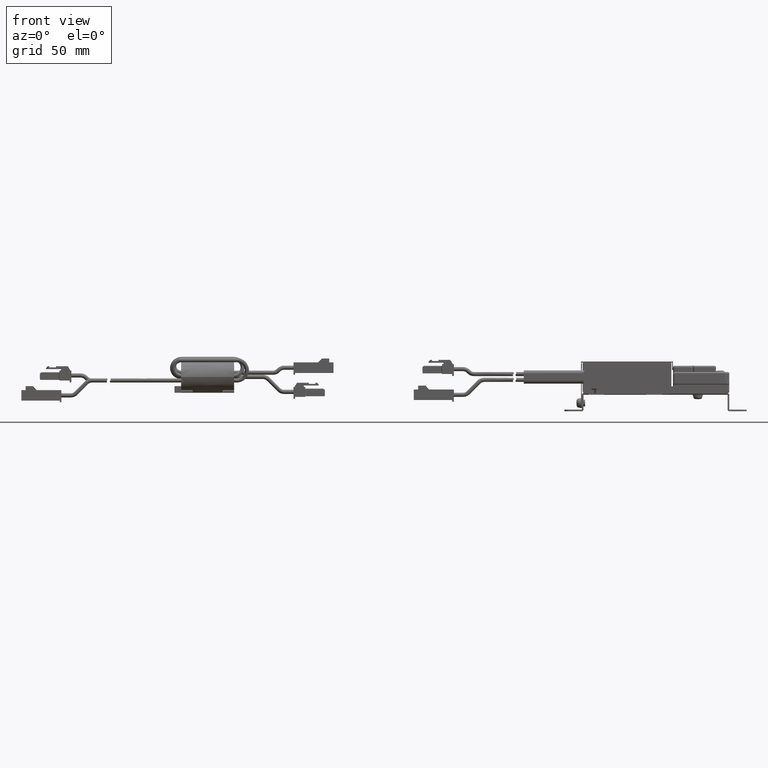
[diagram: clean part render]
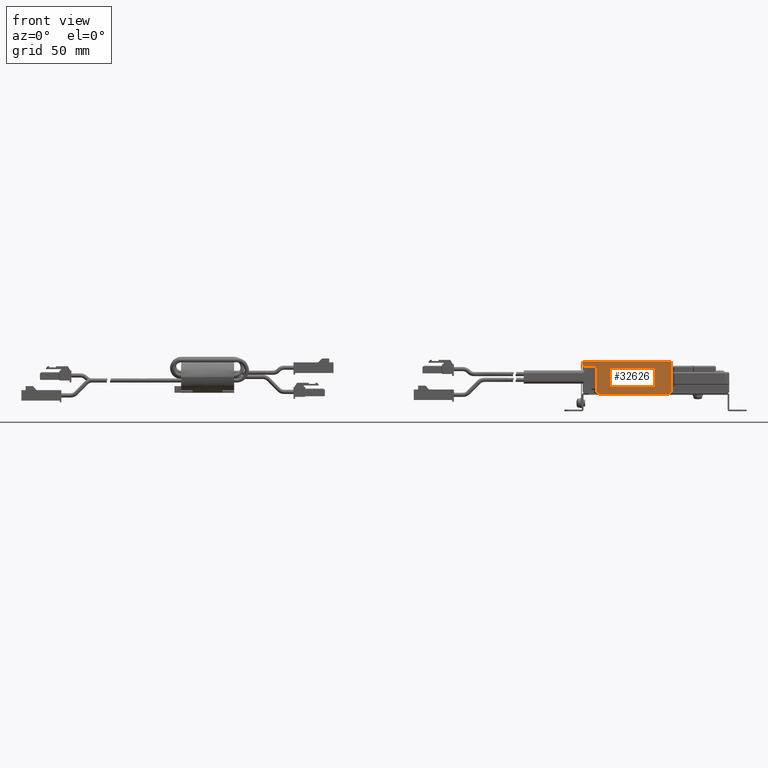
[diagram: same view with one face highlighted and labeled with its STEP entity id]
A machine part, front view. The second image highlights one B-rep face of the part: STEP entity #32626.
In plain terms, the highlighted face is a freeform B-spline surface patch.
Its self-contained STEP definition (entity closure, byte-faithful):
#31425=CARTESIAN_POINT('',(-40.970516533618898,-20.000010140836299,29.500000000000000));
#31426=VERTEX_POINT('',#31425);
#31434=CARTESIAN_POINT('',(-41.467360705477397,-20.000010140836299,29.500000000000000));
#31435=VERTEX_POINT('',#31434);
#31436=CARTESIAN_POINT('',(-40.970516533618898,-20.000010140836299,29.500000000000000));
#31437=CARTESIAN_POINT('',(-41.467360705477397,-20.000010140836299,29.500000000000000));
#31438=QUASI_UNIFORM_CURVE('',1,(#31436,#31437),.UNSPECIFIED.,.F.,.U.);
#31439=EDGE_CURVE('',#31426,#31435,#31438,.T.);
#31455=CARTESIAN_POINT('',(-94.987650490004995,-20.000010140836299,29.500000000000000));
#31456=VERTEX_POINT('',#31455);
#31462=CARTESIAN_POINT('',(-95.485565534138303,-20.000010140836299,29.500000000000000));
#31463=VERTEX_POINT('',#31462);
#31464=CARTESIAN_POINT('',(-94.987650490004995,-20.000010140836299,29.500000000000000));
#31465=CARTESIAN_POINT('',(-95.485565534138303,-20.000010140836299,29.500000000000000));
#31466=QUASI_UNIFORM_CURVE('',1,(#31464,#31465),.UNSPECIFIED.,.F.,.U.);
#31467=EDGE_CURVE('',#31456,#31463,#31466,.T.);
#31547=CARTESIAN_POINT('',(-95.485565534138303,-20.000010140836299,29.0));
#31548=VERTEX_POINT('',#31547);
#31549=CARTESIAN_POINT('',(-95.485565534138303,-20.000010140836299,29.500000000000000));
#31550=CARTESIAN_POINT('',(-95.485565534138303,-20.000010140836299,29.0));
#31551=QUASI_UNIFORM_CURVE('',1,(#31549,#31550),.UNSPECIFIED.,.F.,.U.);
#31552=EDGE_CURVE('',#31463,#31548,#31551,.T.);
#31630=CARTESIAN_POINT('',(-40.470516533618898,-20.000010140836299,26.952905957944100));
#31631=VERTEX_POINT('',#31630);
#31643=CARTESIAN_POINT('',(-40.970516533618898,-20.000010140836299,26.952905957944051));
#31644=VERTEX_POINT('',#31643);
#31645=CARTESIAN_POINT('',(-40.970516533618898,-20.000010140836299,26.952905957944051));
#31646=CARTESIAN_POINT('',(-40.470516533618898,-20.000010140836299,26.952905957944100));
#31647=QUASI_UNIFORM_CURVE('',1,(#31645,#31646),.UNSPECIFIED.,.F.,.U.);
#31648=EDGE_CURVE('',#31644,#31631,#31647,.T.);
#31743=CARTESIAN_POINT('',(-40.970516533618898,-20.000010140836299,26.952905957944051));
#31744=CARTESIAN_POINT('',(-40.970516533618898,-20.000010140836299,29.500000000000000));
#31745=QUASI_UNIFORM_CURVE('',1,(#31743,#31744),.UNSPECIFIED.,.F.,.U.);
#31746=EDGE_CURVE('',#31644,#31426,#31745,.T.);
#32069=CARTESIAN_POINT('',(-95.984494661863692,-20.000010140836299,29.0));
#32070=VERTEX_POINT('',#32069);
#32071=CARTESIAN_POINT('',(-95.984494661863692,-20.000010140836299,29.0));
#32072=CARTESIAN_POINT('',(-95.485565534138303,-20.000010140836299,29.0));
#32073=QUASI_UNIFORM_CURVE('',1,(#32071,#32072),.UNSPECIFIED.,.F.,.U.);
#32074=EDGE_CURVE('',#32070,#31548,#32073,.T.);
#32311=CARTESIAN_POINT('',(-43.467360705477397,-20.000010140836299,10.436299325026100));
#32312=VERTEX_POINT('',#32311);
#32313=CARTESIAN_POINT('',(-41.467360705477397,-20.000010140836299,12.436299325026100));
#32314=VERTEX_POINT('',#32313);
#32315=CARTESIAN_POINT('',(-43.467360705477397,-20.000010140836299,10.436299325026100));
#32316=CARTESIAN_POINT('',(-41.467360705477404,-20.000010140836306,10.436299325026098));
#32317=CARTESIAN_POINT('',(-41.467360705477397,-20.000010140836299,12.436299325026100));
#32325=(BOUNDED_CURVE()B_SPLINE_CURVE(2,(#32315,#32316,#32317),.UNSPECIFIED.,.F.,.U.)CURVE()GEOMETRIC_REPRESENTATION_ITEM()QUASI_UNIFORM_CURVE()RATIONAL_B_SPLINE_CURVE((1.0,0.707106781186548,1.0))REPRESENTATION_ITEM(''));
#32326=EDGE_CURVE('',#32312,#32314,#32325,.T.);
#32347=CARTESIAN_POINT('',(-84.467360705477390,-20.000010140836299,10.436299325026100));
#32348=VERTEX_POINT('',#32347);
#32349=CARTESIAN_POINT('',(-84.467360705477390,-20.000010140836299,10.436299325026100));
#32350=CARTESIAN_POINT('',(-43.467360705477397,-20.000010140836299,10.436299325026100));
#32351=QUASI_UNIFORM_CURVE('',1,(#32349,#32350),.UNSPECIFIED.,.F.,.U.);
#32352=EDGE_CURVE('',#32348,#32312,#32351,.T.);
#32378=CARTESIAN_POINT('',(-86.467360705477390,-20.000010140836299,12.436299325026100));
#32379=VERTEX_POINT('',#32378);
#32380=CARTESIAN_POINT('',(-86.467360705477390,-20.000010140836299,12.436299325026100));
#32381=CARTESIAN_POINT('',(-86.467360705477390,-20.000010140836306,10.436299325026098));
#32382=CARTESIAN_POINT('',(-84.467360705477390,-20.000010140836299,10.436299325026100));
#32390=(BOUNDED_CURVE()B_SPLINE_CURVE(2,(#32380,#32381,#32382),.UNSPECIFIED.,.F.,.U.)CURVE()GEOMETRIC_REPRESENTATION_ITEM()QUASI_UNIFORM_CURVE()RATIONAL_B_SPLINE_CURVE((1.0,0.707106781186548,1.0))REPRESENTATION_ITEM(''));
#32391=EDGE_CURVE('',#32379,#32348,#32390,.T.);
#32408=CARTESIAN_POINT('',(-86.467360705477390,-20.000010140836299,25.0));
#32409=VERTEX_POINT('',#32408);
#32410=CARTESIAN_POINT('',(-86.467360705477390,-20.000010140836299,25.0));
#32411=CARTESIAN_POINT('',(-86.467360705477390,-20.000010140836299,12.436299325026100));
#32412=QUASI_UNIFORM_CURVE('',1,(#32410,#32411),.UNSPECIFIED.,.F.,.U.);
#32413=EDGE_CURVE('',#32409,#32379,#32412,.T.);
#32439=CARTESIAN_POINT('',(-88.467360705477390,-20.000010140836299,27.0));
#32440=VERTEX_POINT('',#32439);
#32441=CARTESIAN_POINT('',(-86.467360705477390,-20.000010140836299,25.0));
#32442=CARTESIAN_POINT('',(-86.467360705477390,-20.000010140836306,27.000000000000011));
#32443=CARTESIAN_POINT('',(-88.467360705477390,-20.000010140836299,27.0));
#32451=(BOUNDED_CURVE()B_SPLINE_CURVE(2,(#32441,#32442,#32443),.UNSPECIFIED.,.F.,.U.)CURVE()GEOMETRIC_REPRESENTATION_ITEM()QUASI_UNIFORM_CURVE()RATIONAL_B_SPLINE_CURVE((1.0,0.707106781186548,1.0))REPRESENTATION_ITEM(''));
#32452=EDGE_CURVE('',#32409,#32440,#32451,.T.);
#32469=CARTESIAN_POINT('',(-92.987650490004995,-20.000010140836299,27.0));
#32470=VERTEX_POINT('',#32469);
#32471=CARTESIAN_POINT('',(-92.987650490004995,-20.000010140836299,27.0));
#32472=CARTESIAN_POINT('',(-88.467360705477390,-20.000010140836299,27.0));
#32473=QUASI_UNIFORM_CURVE('',1,(#32471,#32472),.UNSPECIFIED.,.F.,.U.);
#32474=EDGE_CURVE('',#32470,#32440,#32473,.T.);
#32500=CARTESIAN_POINT('',(-94.987650490004995,-20.000010140836299,29.0));
#32501=VERTEX_POINT('',#32500);
#32502=CARTESIAN_POINT('',(-94.987650490004995,-20.000010140836299,29.0));
#32503=CARTESIAN_POINT('',(-94.987650490004995,-20.000010140836306,27.000000000000011));
#32504=CARTESIAN_POINT('',(-92.987650490004995,-20.000010140836299,27.0));
#32512=(BOUNDED_CURVE()B_SPLINE_CURVE(2,(#32502,#32503,#32504),.UNSPECIFIED.,.F.,.U.)CURVE()GEOMETRIC_REPRESENTATION_ITEM()QUASI_UNIFORM_CURVE()RATIONAL_B_SPLINE_CURVE((1.0,0.707106781186548,1.0))REPRESENTATION_ITEM(''));
#32513=EDGE_CURVE('',#32501,#32470,#32512,.T.);
#32530=CARTESIAN_POINT('',(-94.987650490004995,-20.000010140836299,29.500000000000000));
#32531=CARTESIAN_POINT('',(-94.987650490004995,-20.000010140836299,29.0));
#32532=QUASI_UNIFORM_CURVE('',1,(#32530,#32531),.UNSPECIFIED.,.F.,.U.);
#32533=EDGE_CURVE('',#31456,#32501,#32532,.T.);
#32548=CARTESIAN_POINT('',(-41.467360705477397,-20.000010140836299,12.436299325026100));
#32549=CARTESIAN_POINT('',(-41.467360705477397,-20.000010140836299,29.500000000000000));
#32550=QUASI_UNIFORM_CURVE('',1,(#32548,#32549),.UNSPECIFIED.,.F.,.U.);
#32551=EDGE_CURVE('',#32314,#31435,#32550,.T.);
#32562=CARTESIAN_POINT('',(-95.984494661863692,-20.000010140836299,30.0));
#32563=VERTEX_POINT('',#32562);
#32571=CARTESIAN_POINT('',(-40.470516533618898,-20.000010140836299,30.0));
#32572=VERTEX_POINT('',#32571);
#32573=CARTESIAN_POINT('',(-40.470516533618898,-20.000010140836299,30.0));
#32574=CARTESIAN_POINT('',(-95.984494661863692,-20.000010140836299,30.0));
#32575=QUASI_UNIFORM_CURVE('',1,(#32573,#32574),.UNSPECIFIED.,.F.,.U.);
#32576=EDGE_CURVE('',#32572,#32563,#32575,.T.);
#32593=CARTESIAN_POINT('',(-98.757417761772643,-20.000010140836299,9.459092514229401));
#32594=CARTESIAN_POINT('',(-98.757417761772643,-20.000010140836299,30.977207335536040));
#32595=CARTESIAN_POINT('',(-37.697591944709004,-20.000010140836299,9.459092514229401));
#32596=CARTESIAN_POINT('',(-37.697591944709004,-20.000010140836299,30.977207335536040));
#32597=B_SPLINE_SURFACE_WITH_KNOTS('',1,1,((#32593,#32595),(#32594,#32596)),.UNSPECIFIED.,.F.,.F.,.U.,(2,2),(2,2),(0.0,21.518114821306639),(0.0,61.059825817063640),.UNSPECIFIED.);
#32598=ORIENTED_EDGE('',*,*,#31746,.F.);
#32599=ORIENTED_EDGE('',*,*,#31648,.T.);
#32600=CARTESIAN_POINT('',(-40.470516533618898,-20.000010140836299,26.952905957944100));
#32601=CARTESIAN_POINT('',(-40.470516533618898,-20.000010140836299,30.0));
#32602=QUASI_UNIFORM_CURVE('',1,(#32600,#32601),.UNSPECIFIED.,.F.,.U.);
#32603=EDGE_CURVE('',#31631,#32572,#32602,.T.);
#32604=ORIENTED_EDGE('',*,*,#32603,.T.);
#32605=ORIENTED_EDGE('',*,*,#32576,.T.);
#32606=CARTESIAN_POINT('',(-95.984494661863692,-20.000010140836299,29.0));
#32607=CARTESIAN_POINT('',(-95.984494661863692,-20.000010140836299,30.0));
#32608=QUASI_UNIFORM_CURVE('',1,(#32606,#32607),.UNSPECIFIED.,.F.,.U.);
#32609=EDGE_CURVE('',#32070,#32563,#32608,.T.);
#32610=ORIENTED_EDGE('',*,*,#32609,.F.);
#32611=ORIENTED_EDGE('',*,*,#32074,.T.);
#32612=ORIENTED_EDGE('',*,*,#31552,.F.);
#32613=ORIENTED_EDGE('',*,*,#31467,.F.);
#32614=ORIENTED_EDGE('',*,*,#32533,.T.);
#32615=ORIENTED_EDGE('',*,*,#32513,.T.);
#32616=ORIENTED_EDGE('',*,*,#32474,.T.);
#32617=ORIENTED_EDGE('',*,*,#32452,.F.);
#32618=ORIENTED_EDGE('',*,*,#32413,.T.);
#32619=ORIENTED_EDGE('',*,*,#32391,.T.);
#32620=ORIENTED_EDGE('',*,*,#32352,.T.);
#32621=ORIENTED_EDGE('',*,*,#32326,.T.);
#32622=ORIENTED_EDGE('',*,*,#32551,.T.);
#32623=ORIENTED_EDGE('',*,*,#31439,.F.);
#32624=EDGE_LOOP('',(#32598,#32599,#32604,#32605,#32610,#32611,#32612,#32613,#32614,#32615,#32616,#32617,#32618,#32619,#32620,#32621,#32622,#32623));
#32625=FACE_OUTER_BOUND('',#32624,.T.);
#32626=ADVANCED_FACE('',(#32625),#32597,.F.);